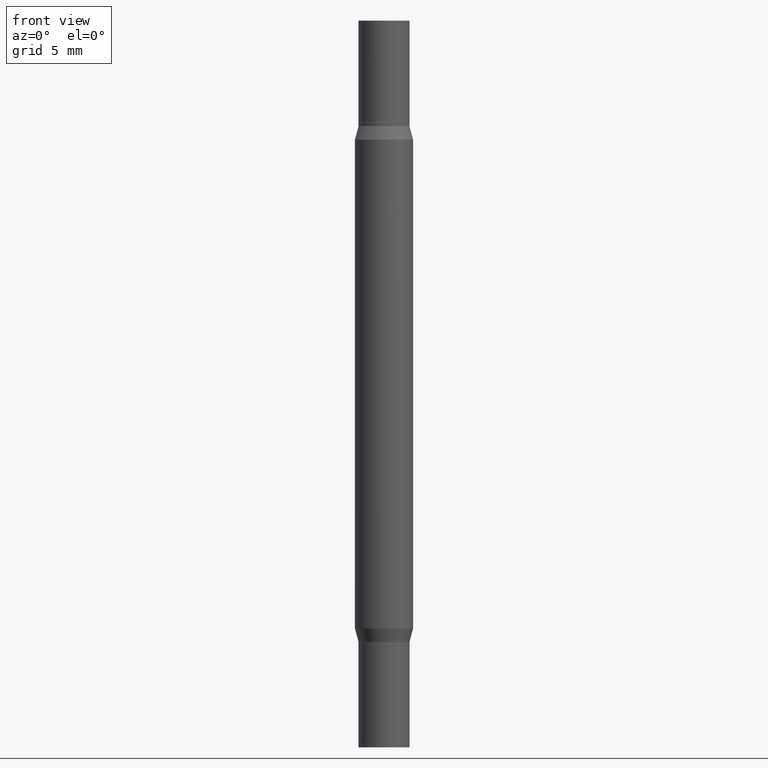
[diagram: clean part render]
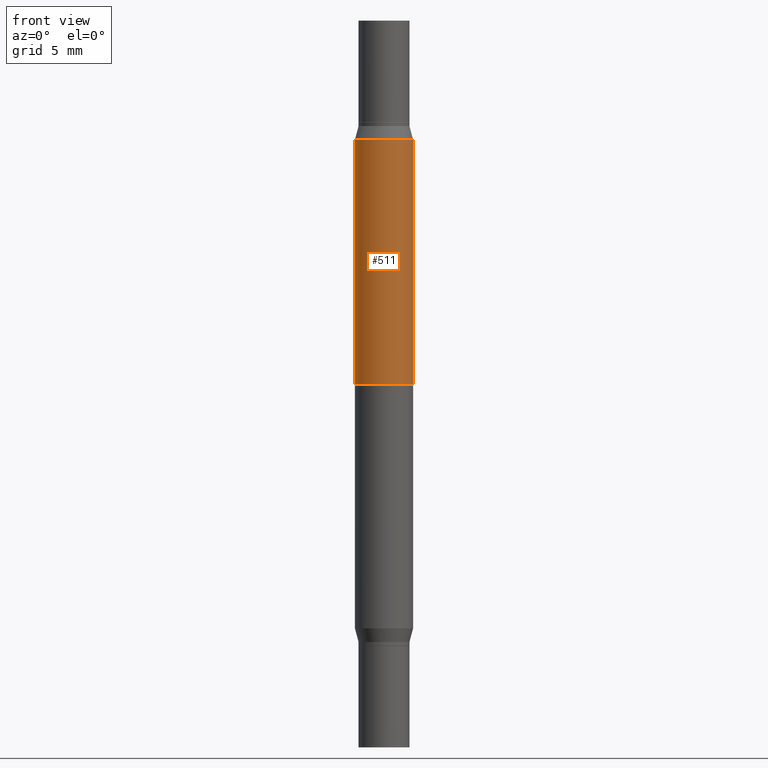
[diagram: same view with one face highlighted and labeled with its STEP entity id]
A machine part, front view. The second image highlights one B-rep face of the part: STEP entity #511.
In plain terms, the highlighted cylindrical surface (edge-blend (fillet) strip) has radius 2.0003 mm, axis along (-0, -0, -1).
Its self-contained STEP definition (entity closure, byte-faithful):
#2 = CARTESIAN_POINT ( 'NONE',  ( -0.07875000000000001443, -1.740632076205336930E-15, -0.9842499999999998472 ) ) ;
#47 = CARTESIAN_POINT ( 'NONE',  ( 0.000000000000000000, -6.873299672471851415E-15, -1.968499999999999694 ) ) ;
#94 = CARTESIAN_POINT ( 'NONE',  ( -0.07875000000000001443, -5.850378619788178690E-16, -0.3223607004545533949 ) ) ;
#116 = CYLINDRICAL_SURFACE ( 'NONE', #466, 0.07875000000000001443 ) ;
#127 = DIRECTION ( 'NONE',  ( 0.000000000000000000, 1.000000000000000000, -3.469013325287952504E-15 ) ) ;
#132 = DIRECTION ( 'NONE',  ( -0.000000000000000000, -3.491643216902134830E-15, -1.000000000000000000 ) ) ;
#167 = CARTESIAN_POINT ( 'NONE',  ( 0.07875000000000001443, -2.830804604397638560E-15, -0.9842499999999998472 ) ) ;
#240 = EDGE_LOOP ( 'NONE', ( #412, #698, #609, #794 ) ) ;
#245 = VECTOR ( 'NONE', #248, 39.37007874015748143 ) ;
#248 = DIRECTION ( 'NONE',  ( -2.445468806185136877E-29, -3.491805094961123683E-15, -1.000000000000000000 ) ) ;
#272 = EDGE_CURVE ( 'NONE', #751, #758, #759, .T. ) ;
#310 = DIRECTION ( 'NONE',  ( 1.000000000000000000, -6.982962677686267499E-15, 0.000000000000000000 ) ) ;
#353 = DIRECTION ( 'NONE',  ( 1.000000000000000000, -6.982962677686273810E-15, 0.000000000000000000 ) ) ;
#378 = EDGE_CURVE ( 'NONE', #751, #843, #563, .T. ) ;
#410 = DIRECTION ( 'NONE',  ( -2.445468806185136597E-29, -3.491805094961124077E-15, -1.000000000000000000 ) ) ;
#411 = CIRCLE ( 'NONE', #842, 0.07875000000000001443 ) ;
#412 = ORIENTED_EDGE ( 'NONE', *, *, #272, .F. ) ;
#466 = AXIS2_PLACEMENT_3D ( 'NONE', #47, #410, #353 ) ;
#511 = ADVANCED_FACE ( 'NONE', ( #771 ), #116, .T. ) ;
#553 = EDGE_CURVE ( 'NONE', #916, #843, #411, .T. ) ;
#563 = LINE ( 'NONE', #668, #245 ) ;
#609 = ORIENTED_EDGE ( 'NONE', *, *, #553, .F. ) ;
#629 = EDGE_CURVE ( 'NONE', #758, #916, #938, .T. ) ;
#646 = CARTESIAN_POINT ( 'NONE',  ( 2.406952672487720357E-29, -3.436490507756365459E-15, -0.9842499999999998472 ) ) ;
#668 = CARTESIAN_POINT ( 'NONE',  ( -0.07875000000000001443, -6.333035455147343525E-15, -1.968499999999999694 ) ) ;
#690 = CARTESIAN_POINT ( 'NONE',  ( 0.07875000000000001443, -1.675210390171119696E-15, -0.3223607004545533949 ) ) ;
#698 = ORIENTED_EDGE ( 'NONE', *, *, #378, .T. ) ;
#713 = AXIS2_PLACEMENT_3D ( 'NONE', #750, #978, #310 ) ;
#750 = CARTESIAN_POINT ( 'NONE',  ( 4.025582307673839975E-29, -1.125302079303325561E-15, -0.3223607004545533949 ) ) ;
#751 = VERTEX_POINT ( 'NONE', #94 ) ;
#758 = VERTEX_POINT ( 'NONE', #690 ) ;
#759 = CIRCLE ( 'NONE', #713, 0.07875000000000001443 ) ;
#768 = CARTESIAN_POINT ( 'NONE',  ( 0.07875000000000001443, -7.423207983339645550E-15, -1.968499999999999694 ) ) ;
#771 = FACE_OUTER_BOUND ( 'NONE', #240, .T. ) ;
#794 = ORIENTED_EDGE ( 'NONE', *, *, #629, .F. ) ;
#842 = AXIS2_PLACEMENT_3D ( 'NONE', #646, #132, #127 ) ;
#843 = VERTEX_POINT ( 'NONE', #2 ) ;
#867 = DIRECTION ( 'NONE',  ( -2.445468806185136877E-29, -3.491805094961123683E-15, -1.000000000000000000 ) ) ;
#916 = VERTEX_POINT ( 'NONE', #167 ) ;
#938 = LINE ( 'NONE', #768, #969 ) ;
#969 = VECTOR ( 'NONE', #867, 39.37007874015748143 ) ;
#978 = DIRECTION ( 'NONE',  ( 2.445468806185136597E-29, 3.491805094961124077E-15, 1.000000000000000000 ) ) ;